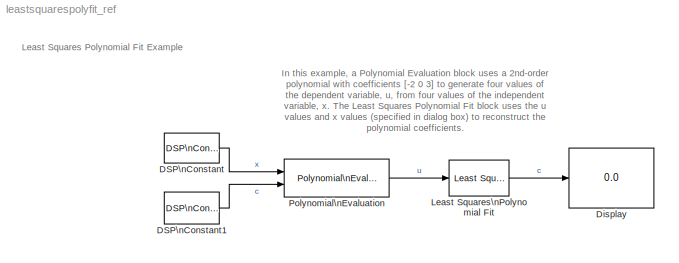
MODEL leastsquarespolyfit_ref
KIND model
CONFIG AbsTol = auto
CONFIG FixedStep = auto
CONFIG MaxStep = auto
CONFIG MinStep = auto
CONFIG RelTol = 1e-3
CONFIG Solver = FixedStepDiscrete
CONFIG SolverMode = Auto
CONFIG StartTime = 0.0
CONFIG StopTime = 10.0
BLOCK [Reference] DSP\nConstant  REF=dspsrcs4/DSP\nConstant
  FramebasedOutput = off
  InterpretAs1D = off
  Ports = [0, 1]
  SampleMode = Discrete
  SourceBlock = dspsrcs4/DSP\nConstant
  SourceType = DSP Constant
  Ts = 1
  Value = [0:31]'/31
  additionalParams = off
  continuousOutput = Sample-based
  dataType = Inherit from 'Constant value'
  discreteOutput = Sample-based
  fracBitsMode = Best precision
  framePeriod = 1
  numFracBits = 15
  sampTime = 1
  udDataType = sfix(16)
  wordLen = 16
BLOCK [Reference] DSP\nConstant1  REF=dspsrcs4/DSP\nConstant
  FramebasedOutput = off
  InterpretAs1D = off
  Ports = [0, 1]
  SampleMode = Discrete
  SourceBlock = dspsrcs4/DSP\nConstant
  SourceType = DSP Constant
  Ts = 1
  Value = [-2 0 3]'
  additionalParams = off
  continuousOutput = Sample-based
  dataType = Inherit from 'Constant value'
  discreteOutput = Sample-based
  fracBitsMode = Best precision
  framePeriod = 1
  numFracBits = 15
  sampTime = 1
  udDataType = sfix(16)
  wordLen = 16
BLOCK [Display] Display
  Decimation = 1
  Ports = [1]
BLOCK [Reference] Least Squares\nPolynomial Fit  REF=dsppolyfun/Least Squares\nPolynomial Fit
  N = 2
  Ports = [1, 1]
  SourceBlock = dsppolyfun/Least Squares\nPolynomial Fit
  SourceType = Least Squares Polynomial Fit
  X = (0:31) / 31
BLOCK [Reference] Polynomial\nEvaluation  REF=dsppolyfun/Polynomial\nEvaluation
  Ports = [2, 1]
  SourceBlock = dsppolyfun/Polynomial\nEvaluation
  SourceType = Polynomial Evaluation
  constCoeffs = [5 4 3 2 1]
  useConstCoeffs = off
ANNOTATION (root): In this example, a Polynomial Evaluation block uses a 2nd-order\npolynomial with coefficients [-2 0 3] to generate four values of\nthe dependent variable, u, from four values of the independent\nvariable, x. The Least Squares Polynomial Fit block uses the u\nvalues and x values (specified in dialog box) to reconstruct the \npolynomial coefficients.
ANNOTATION (root): Least Squares Polynomial Fit Example
LINE DSP\nConstant1:1 -> Polynomial\nEvaluation:2
LINE DSP\nConstant:1 -> Polynomial\nEvaluation:1
LINE Least Squares\nPolynomial Fit:1 -> Display:1
LINE Polynomial\nEvaluation:1 -> Least Squares\nPolynomial Fit:1
